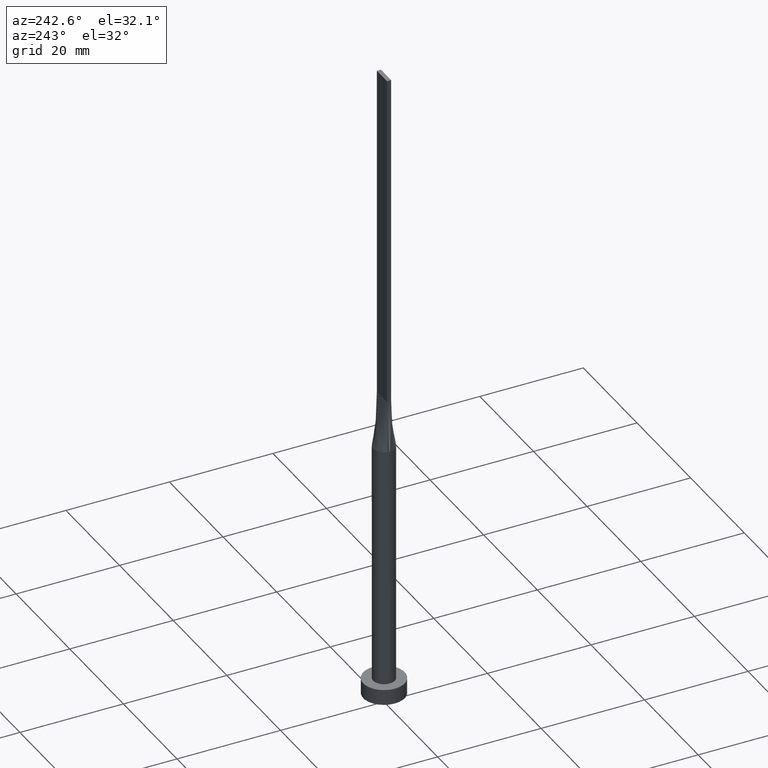
[diagram: clean part render]
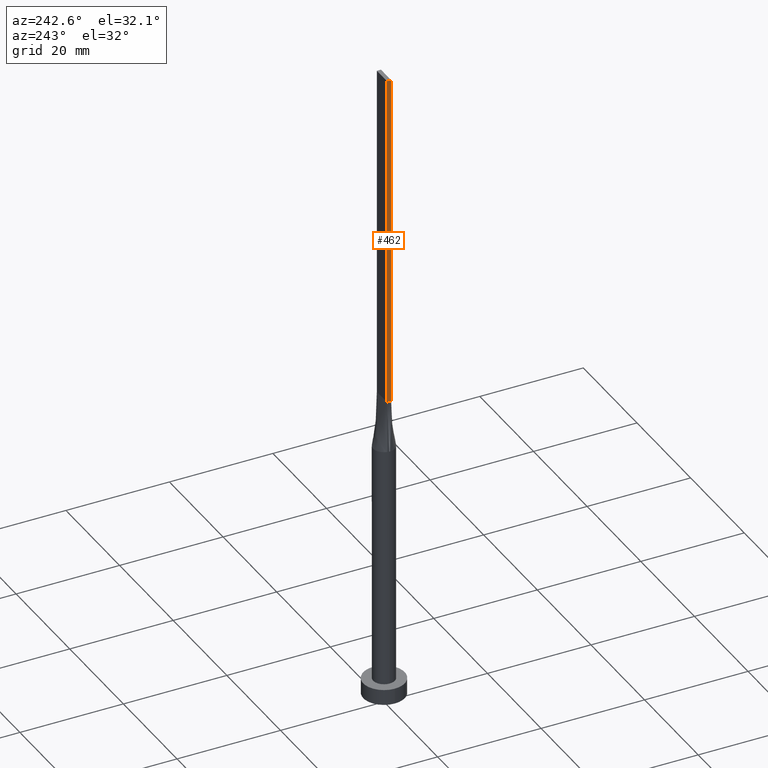
[diagram: same view with one face highlighted and labeled with its STEP entity id]
A machine part, auxiliary view. The second image highlights one B-rep face of the part: STEP entity #462.
In plain terms, the highlighted planar face has unit normal (1, -0, 0).
Its self-contained STEP definition (entity closure, byte-faithful):
#16 = VECTOR ( 'NONE', #81, 1000.000000000000000 ) ;
#18 = ORIENTED_EDGE ( 'NONE', *, *, #239, .T. ) ;
#23 = EDGE_LOOP ( 'NONE', ( #18, #473, #213, #252 ) ) ;
#28 = EDGE_CURVE ( 'NONE', #522, #93, #44, .T. ) ;
#30 = EDGE_CURVE ( 'NONE', #573, #38, #221, .T. ) ;
#31 = CARTESIAN_POINT ( 'NONE',  ( -1.899999999999999689, 0.4000000000000002442, 125.0000000000000000 ) ) ;
#38 = VERTEX_POINT ( 'NONE', #286 ) ;
#44 = LINE ( 'NONE', #402, #556 ) ;
#45 = VECTOR ( 'NONE', #153, 1000.000000000000000 ) ;
#57 = CARTESIAN_POINT ( 'NONE',  ( -1.899999999999999689, 0.4000000000000002442, 125.0000000000000000 ) ) ;
#81 = DIRECTION ( 'NONE',  ( -2.710505431213761578E-16, -1.000000000000000000, 0.000000000000000000 ) ) ;
#93 = VERTEX_POINT ( 'NONE', #406 ) ;
#98 = DIRECTION ( 'NONE',  ( 2.710505431213761085E-16, 1.000000000000000000, 0.000000000000000000 ) ) ;
#130 = LINE ( 'NONE', #31, #16 ) ;
#153 = DIRECTION ( 'NONE',  ( -2.710505431213761578E-16, -1.000000000000000000, 0.000000000000000000 ) ) ;
#205 = AXIS2_PLACEMENT_3D ( 'NONE', #57, #404, #98 ) ;
#213 = ORIENTED_EDGE ( 'NONE', *, *, #515, .F. ) ;
#221 = LINE ( 'NONE', #262, #532 ) ;
#236 = FACE_OUTER_BOUND ( 'NONE', #23, .T. ) ;
#239 = EDGE_CURVE ( 'NONE', #38, #93, #368, .T. ) ;
#252 = ORIENTED_EDGE ( 'NONE', *, *, #30, .T. ) ;
#257 = CARTESIAN_POINT ( 'NONE',  ( -1.899999999999999689, 0.4000000000000002442, 125.0000000000000000 ) ) ;
#262 = CARTESIAN_POINT ( 'NONE',  ( -1.899999999999999689, 0.4000000000000002442, 125.0000000000000000 ) ) ;
#286 = CARTESIAN_POINT ( 'NONE',  ( -1.899999999999999689, 0.4000000000000002442, 60.00000000000000711 ) ) ;
#368 = LINE ( 'NONE', #408, #45 ) ;
#389 = CARTESIAN_POINT ( 'NONE',  ( -1.899999999999999911, -0.3999999999999995781, 125.0000000000000000 ) ) ;
#402 = CARTESIAN_POINT ( 'NONE',  ( -1.899999999999999911, -0.3999999999999995781, 125.0000000000000000 ) ) ;
#404 = DIRECTION ( 'NONE',  ( 1.000000000000000000, -2.710505431213761085E-16, 0.000000000000000000 ) ) ;
#406 = CARTESIAN_POINT ( 'NONE',  ( -1.899999999999999911, -0.3999999999999995781, 60.00000000000000711 ) ) ;
#408 = CARTESIAN_POINT ( 'NONE',  ( -1.899999999999999689, 0.4000000000000002442, 60.00000000000000711 ) ) ;
#448 = DIRECTION ( 'NONE',  ( -0.000000000000000000, -0.000000000000000000, -1.000000000000000000 ) ) ;
#459 = PLANE ( 'NONE',  #205 ) ;
#462 = ADVANCED_FACE ( 'NONE', ( #236 ), #459, .F. ) ;
#473 = ORIENTED_EDGE ( 'NONE', *, *, #28, .F. ) ;
#497 = DIRECTION ( 'NONE',  ( -0.000000000000000000, -0.000000000000000000, -1.000000000000000000 ) ) ;
#515 = EDGE_CURVE ( 'NONE', #573, #522, #130, .T. ) ;
#522 = VERTEX_POINT ( 'NONE', #389 ) ;
#532 = VECTOR ( 'NONE', #497, 1000.000000000000000 ) ;
#556 = VECTOR ( 'NONE', #448, 1000.000000000000000 ) ;
#573 = VERTEX_POINT ( 'NONE', #257 ) ;